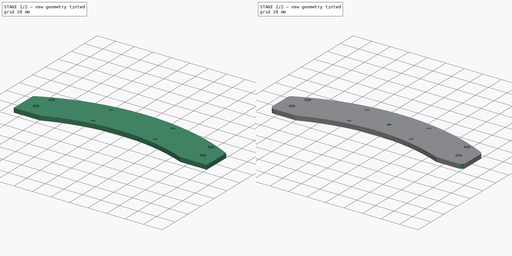
[diagram: build sequence overview — one tinted view per stage of 2, left to right]
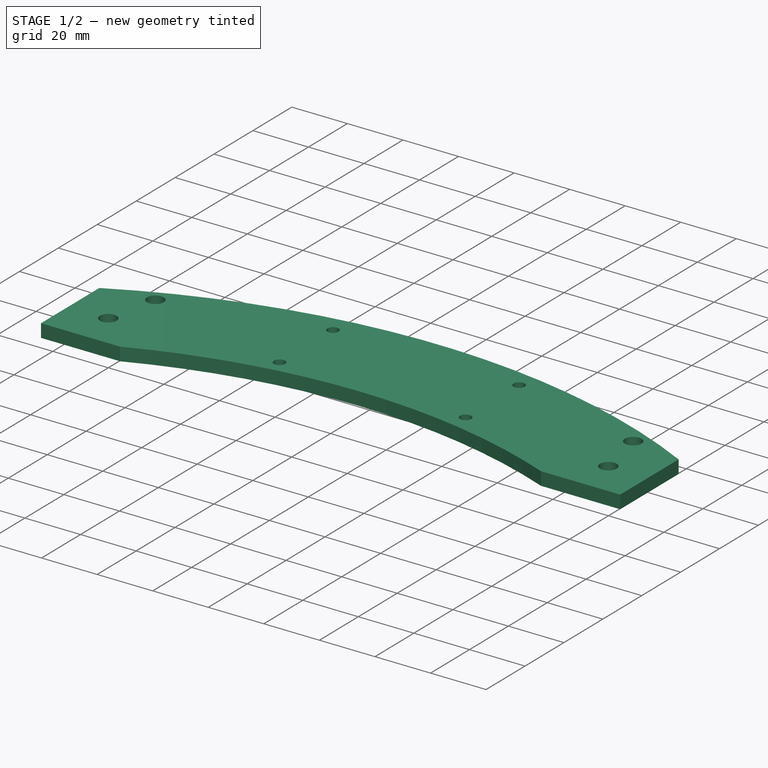
[diagram: stage 1 of 2 — iso view after this stage's code; geometry added in this stage tinted green]
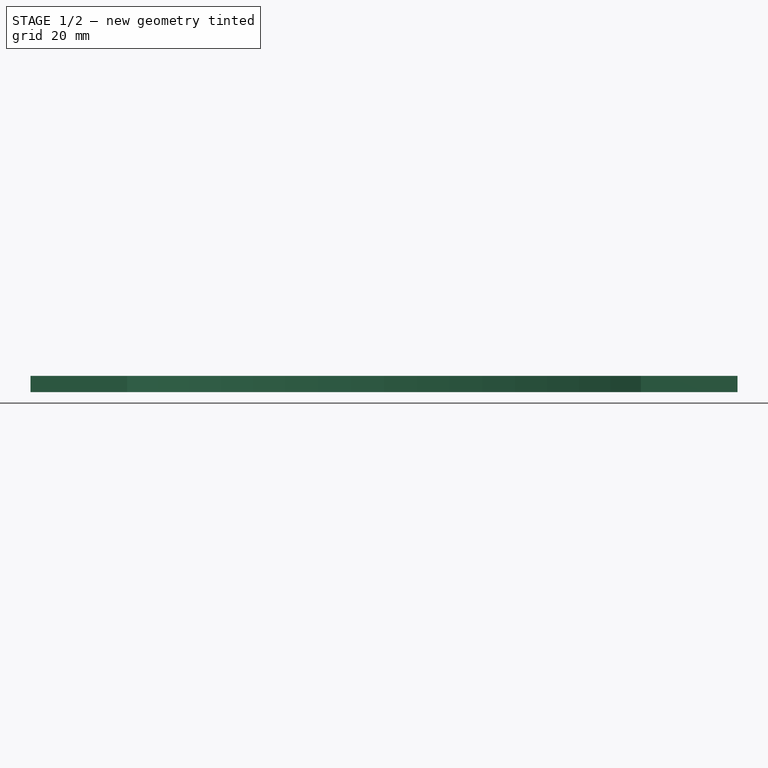
[diagram: stage 1 of 2 — front view after this stage's code; geometry added in this stage tinted green]
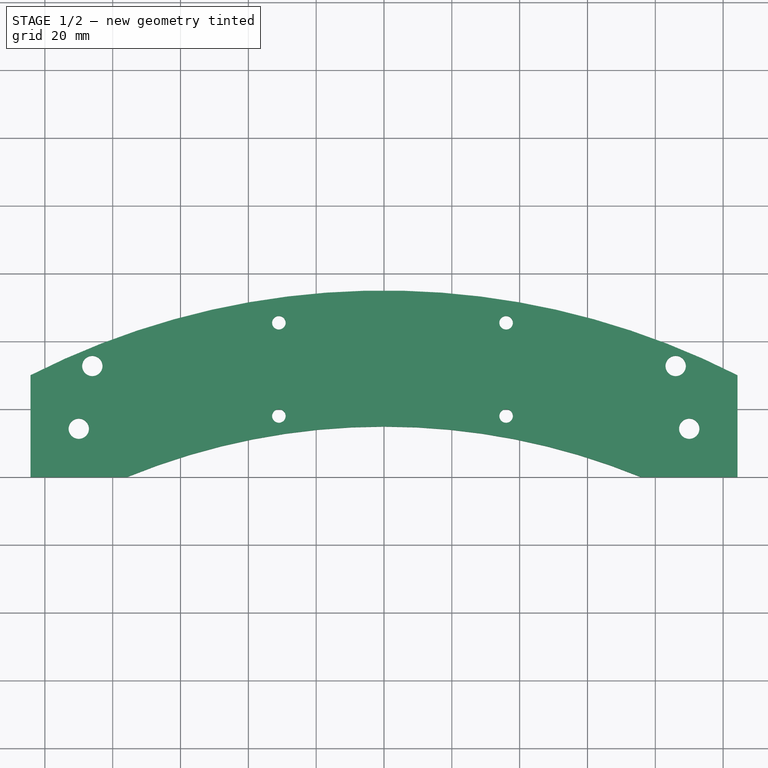
[diagram: stage 1 of 2 — top view after this stage's code; geometry added in this stage tinted green]
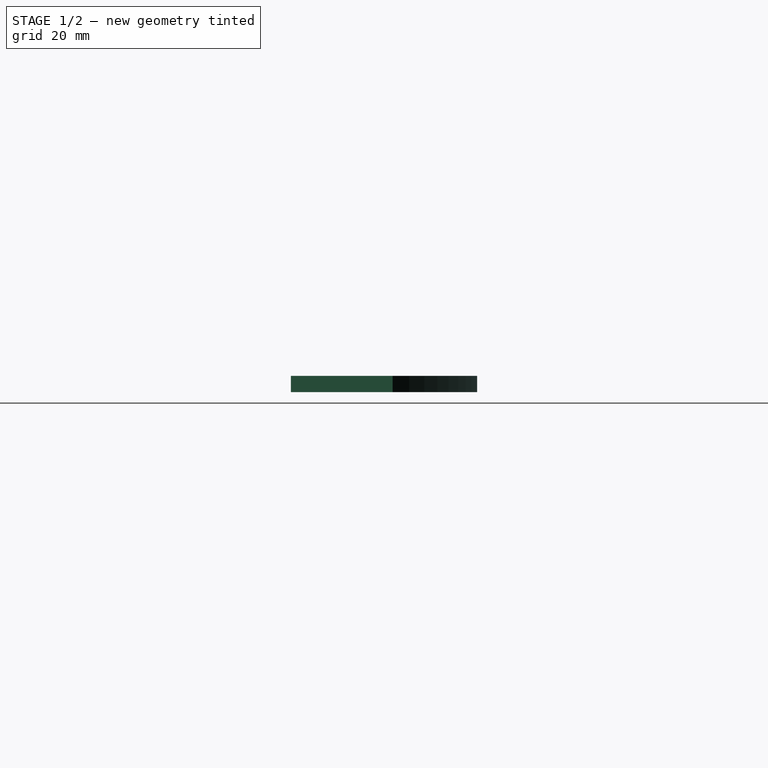
[diagram: stage 1 of 2 — right view after this stage's code; geometry added in this stage tinted green]
FCSTD DOCUMENT  (FreeCAD 0.16R5861 (Git))
Label: y_end_plate_v0.2_revA
License: All rights reserved
LicenseURL: http://en.wikipedia.org/wiki/All_rights_reserved
objects: Drawing::FeatureView×54, Sketcher::SketchObject×4, Drawing::FeatureViewPart×3, PartDesign::Pocket×2, PartDesign::Pad×1, PartDesign::Fillet×1, Drawing::FeaturePage×1
note: 11 computed .brp shape members not serialized (recipe doc carries the construction recipe); baked Part::Feature solids carry a one-line shape summary decoded from their .brp

FEATURE [Sketcher::SketchObject] Sketch
  sketch-geometry (8):
    g0: ArcOfCircle CenterX=0 CenterY=-185.1 CenterZ=0 NormalX=0 NormalY=0 NormalZ=1 Radius=200 StartAngle=1.18235 EndAngle=1.95924
    g1: ArcOfCircle CenterX=0 CenterY=-175 CenterZ=0 NormalX=0 NormalY=0 NormalZ=1 Radius=230 StartAngle=1.10038 EndAngle=2.04122
    g2: LineSegment [constr] StartX=0 StartY=55 StartZ=0 EndX=0 EndY=0 EndZ=0
    g3: LineSegment StartX=-104.25 StartY=0 StartZ=0 EndX=-104.25 EndY=30.0169 EndZ=0
    g4: LineSegment StartX=-104.25 StartY=0 StartZ=0 EndX=-75.7495 EndY=-1.6e-11 EndZ=0
    g5: LineSegment StartX=104.25 StartY=30.0169 StartZ=0 EndX=104.25 EndY=0 EndZ=0
    g6: LineSegment StartX=75.7495 StartY=-1.6e-11 StartZ=0 EndX=104.25 EndY=0 EndZ=0
    g7: LineSegment [constr] StartX=0 StartY=14.9 StartZ=0 EndX=0 EndY=0 EndZ=0
  constraints (26):
    c: PointOnObject(g0,g-1)
    c: PointOnObject(g0,g-1)
    c: PointOnObject(g2,g1)
    c: Coincident(g2,g-1)
    c: Vertical(g2)
    c: PointOnObject(g1,g-2)
    c: PointOnObject(g0,g-2)
    c: DistanceY(g2) = -55
    c: Radius(g0) = 200
    c: Radius(g1) = 230
    c: PointOnObject(g3,g-1)
    c: Coincident(g3,g1)
    c: Vertical(g3)
    c: Coincident(g4,g3)
    c: Coincident(g4,g0)
    c: Coincident(g5,g1)
    c: PointOnObject(g5,g-1)
    c: Vertical(g5)
    c: Coincident(g6,g0)
    c: Coincident(g6,g5)
    c: DistanceX(g3,g5) = 208.5
    c: PointOnObject(g7,g0)
    c: Coincident(g7,g-1)
    c: DistanceY(g7) = -14.9
    c: Vertical(g7)
    c: Equal(g6,g4)
FEATURE [PartDesign::Pad] Pad
  Length = 4.763
  Length2 = 100
  Sketch = -> Sketch
  Type = 0
FEATURE [Sketcher::SketchObject] Sketch001
  ExternalGeometry = -> [Pad]
  Placement = pos=(0,0,4.763) rot=(0,0,1;0rad)
  Support = -> Pad [Face8]
  sketch-geometry (14):
    g0: LineSegment [constr] StartX=-31 StartY=45.5 StartZ=0 EndX=36 EndY=45.5 EndZ=0
    g1: LineSegment [constr] StartX=36 StartY=45.5 StartZ=0 EndX=36 EndY=18 EndZ=0
    g2: LineSegment [constr] StartX=36 StartY=18 StartZ=0 EndX=-31 EndY=18 EndZ=0
    g3: LineSegment [constr] StartX=-31 StartY=18 StartZ=0 EndX=-31 EndY=45.5 EndZ=0
    g4: Circle CenterX=-31 CenterY=45.5 CenterZ=0 NormalX=0 NormalY=0 NormalZ=1 Radius=2
    g5: Circle CenterX=36 CenterY=45.5 CenterZ=0 NormalX=0 NormalY=0 NormalZ=1 Radius=2
    g6: Circle CenterX=36 CenterY=18 CenterZ=0 NormalX=0 NormalY=0 NormalZ=1 Radius=2
    g7: Circle CenterX=-31 CenterY=18 CenterZ=0 NormalX=0 NormalY=0 NormalZ=1 Radius=2
    g8: LineSegment [constr] StartX=-90 StartY=14.25 StartZ=0 EndX=90 EndY=14.25 EndZ=0
    g9: LineSegment [constr] StartX=-86 StartY=32.75 StartZ=0 EndX=86 EndY=32.75 EndZ=0
    g10: Circle CenterX=-90 CenterY=14.25 CenterZ=0 NormalX=0 NormalY=0 NormalZ=1 Radius=3
    g11: Circle CenterX=-86 CenterY=32.75 CenterZ=0 NormalX=0 NormalY=0 NormalZ=1 Radius=3
    g12: Circle CenterX=86 CenterY=32.75 CenterZ=0 NormalX=0 NormalY=0 NormalZ=1 Radius=3
    g13: Circle CenterX=90 CenterY=14.25 CenterZ=0 NormalX=0 NormalY=0 NormalZ=1 Radius=3
  constraints (36):
    c: Coincident(g0,g1)
    c: Coincident(g1,g2)
    c: Coincident(g2,g3)
    c: Coincident(g3,g0)
    c: Horizontal(g0)
    c: Horizontal(g2)
    c: Vertical(g1)
    c: Vertical(g3)
    c: DistanceX(g-3,g2) = 73.25
    c: DistanceX(g1,g-3) = -140.25
    c: DistanceY(g2,g-3) = -18
    c: DistanceY(g0,g-3) = -45.5
    c: Coincident(g4,g0)
    c: Coincident(g5,g0)
    c: Coincident(g6,g1)
    c: Coincident(g7,g2)
    c: Equal(g7,g4)
    c: Equal(g4,g5)
    c: Equal(g5,g6)
    c: Radius(g5) = 2
    c: Horizontal(g8)
    c: Horizontal(g9)
    c: DistanceY(g8,g-3) = -14.25
    c: DistanceX(g8,g-3) = -14.25
    c: DistanceY(g9,g-3) = -32.75
    c: DistanceX(g9,g-3) = -18.25
    c: DistanceX(g9,g-3) = -190.25
    c: DistanceX(g8,g-3) = -194.25
    c: Coincident(g10,g8)
    c: Coincident(g11,g9)
    c: Coincident(g12,g9)
    c: Coincident(g13,g8)
    c: Radius(g13) = 3
    c: Equal(g13,g12)
    c: Equal(g13,g11)
    c: Equal(g13,g10)
FEATURE [PartDesign::Pocket] Pocket
  Length = 5
  Sketch = -> Sketch001
  Type = 1
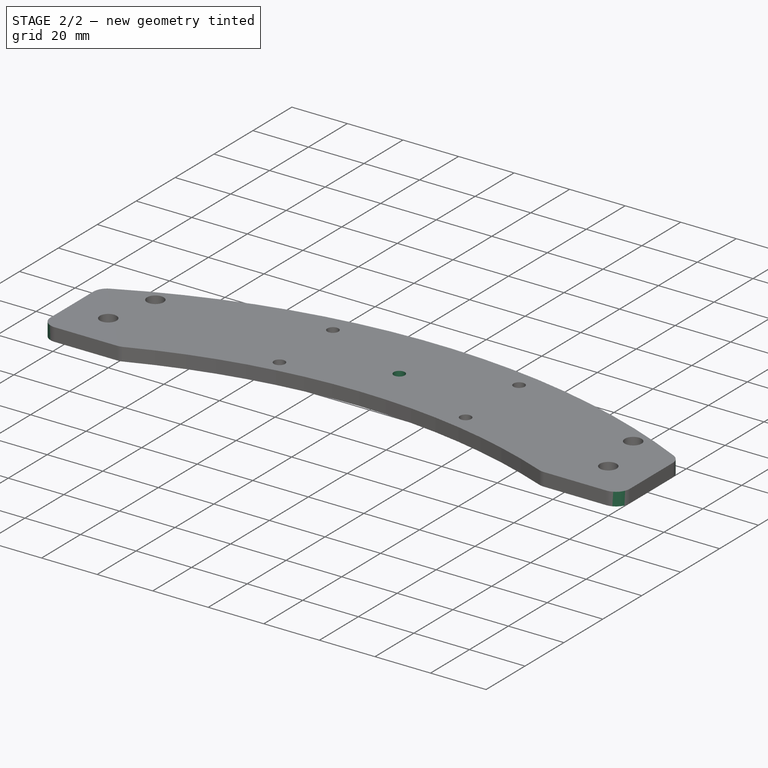
[diagram: stage 2 of 2 — iso view after this stage's code; geometry added in this stage tinted green]
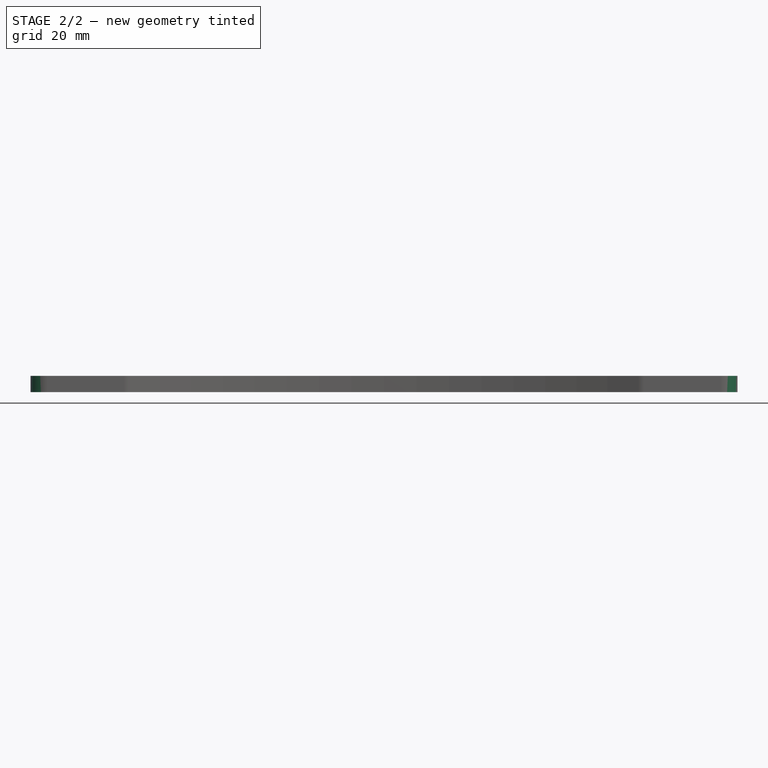
[diagram: stage 2 of 2 — front view after this stage's code; geometry added in this stage tinted green]
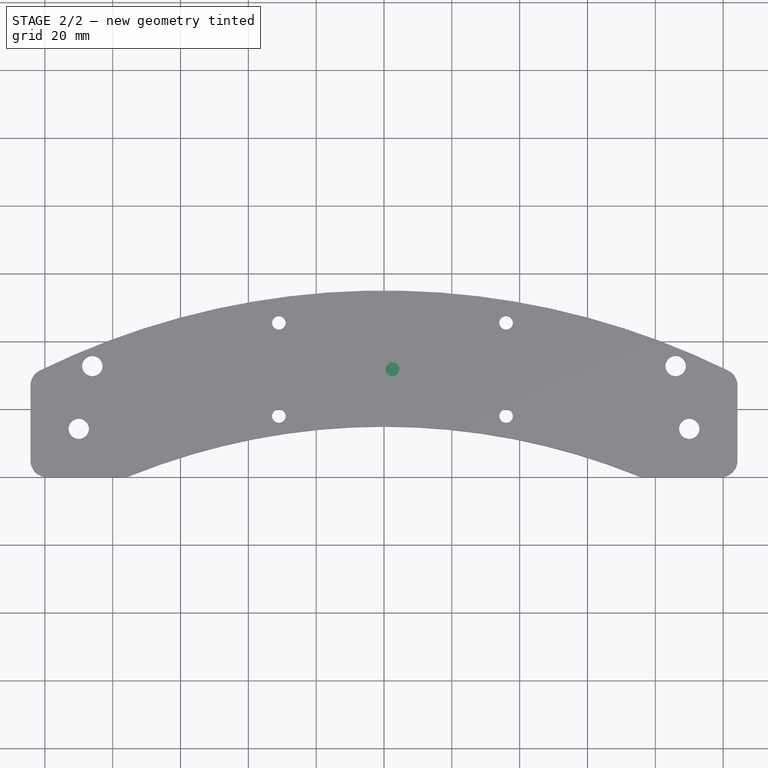
[diagram: stage 2 of 2 — top view after this stage's code; geometry added in this stage tinted green]
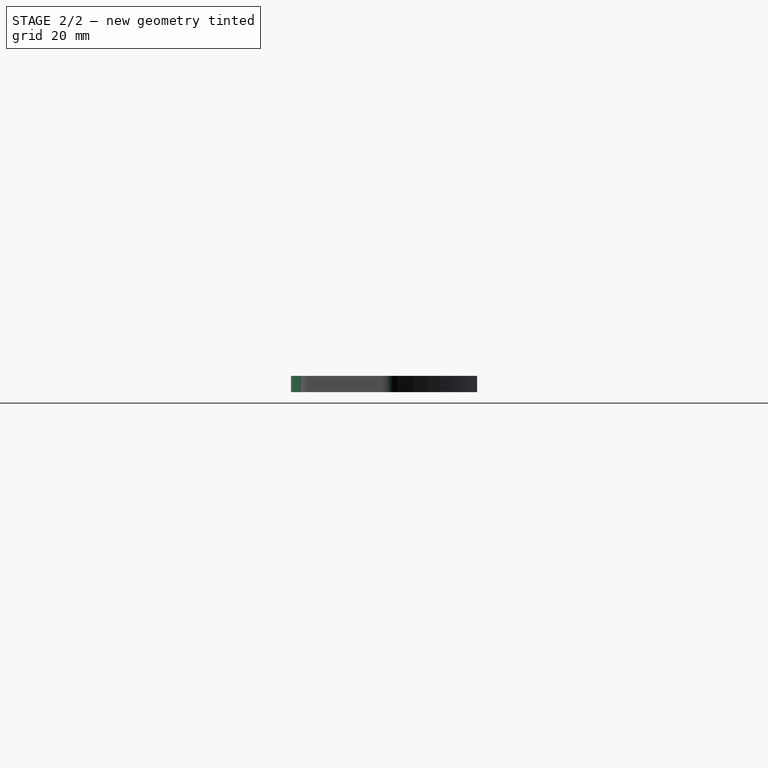
[diagram: stage 2 of 2 — right view after this stage's code; geometry added in this stage tinted green]
FEATURE [PartDesign::Fillet] Fillet
  Base = -> Pocket [Edge34,Edge8,Edge33,Edge2,Edge1,Edge5]
  Radius = 5
FEATURE [Drawing::FeatureView] centerLines001
  Rotation = 0
  ViewResult = <g transform="scale(0.500000,0.500000)" stroke="rgb(0,0,255)"  stroke-width="0.600000" > <path d="M 110.000000,163.250000 L 110.000000,159.250000 "/>\n<path d="M 110.000000,163.250000 L 114.000000,163.250000 "/>\n<path d="M 110.000000,163.250000 L 110.000000,167.250000 "/>\n<path d="M 110.000000,163.250000 L 106.000000,163.250000 "/> </g> 
  Visible = true
  X = 0
  Y = 0
FEATURE [Drawing::FeatureView] centerLines002
  Rotation = 0
  ViewResult = <g transform="scale(0.500000,0.500000)" stroke="rgb(0,0,255)"  stroke-width="0.600000" > <path d="M 114.000000,144.750000 L 114.000000,140.750000 "/>\n<path d="M 114.000000,144.750000 L 118.000000,144.750000 "/>\n<path d="M 114.000000,144.750000 L 114.000000,148.685197 "/>\n<path d="M 114.000000,144.750000 L 110.000000,144.750000 "/> </g> 
  Visible = true
  X = 0
  Y = 0
FEATURE [Drawing::FeatureView] centerLines003
  Rotation = 0
  ViewResult = <g transform="scale(0.500000,0.500000)" stroke="rgb(0,0,255)"  stroke-width="0.600000" > <path d="M 169.000000,132.000000 L 169.000000,134.952283 "/>\n<path d="M 169.000000,132.000000 L 172.189606,132.000000 "/>\n<path d="M 169.000000,132.000000 L 169.000000,128.614016 "/>\n<path d="M 169.000000,132.000000 L 165.059055,132.000000 "/> </g> 
  Visible = true
  X = 0
  Y = 0
FEATURE [Drawing::FeatureView] centerLines004
  Rotation = 0
  ViewResult = <g transform="scale(0.500000,0.500000)" stroke="rgb(0,0,255)"  stroke-width="0.600000" > <path d="M 169.000000,159.500000 L 169.000000,155.551653 "/>\n<path d="M 169.000000,159.500000 L 171.925511,159.500000 "/>\n<path d="M 169.000000,159.500000 L 169.000000,162.418110 "/>\n<path d="M 169.000000,159.500000 L 165.323149,159.500000 "/> </g> 
  Visible = true
  X = 0
  Y = 0
FEATURE [Drawing::FeatureView] centerLines005
  Rotation = 0
  ViewResult = <g transform="scale(0.500000,0.500000)" stroke="rgb(0,0,255)"  stroke-width="0.600000" > <path d="M 236.000000,159.500000 L 236.000000,156.079842 "/>\n<path d="M 236.000000,159.500000 L 238.477322,159.500000 "/>\n<path d="M 236.000000,159.500000 L 236.000000,162.418110 "/>\n<path d="M 236.000000,159.500000 L 232.667244,159.500000 "/> </g> 
  Visible = true
  X = 0
  Y = 0
FEATURE [Drawing::FeatureView] centerLines006
  Rotation = 0
  ViewResult = <g transform="scale(0.500000,0.500000)" stroke="rgb(0,0,255)"  stroke-width="0.600000" > <path d="M 236.000000,132.000000 L 236.000000,135.216378 "/>\n<path d="M 236.000000,132.000000 L 239.269606,132.000000 "/>\n<path d="M 236.000000,132.000000 L 236.000000,128.878110 "/>\n<path d="M 236.000000,132.000000 L 232.000000,132.000000 "/> </g> 
  Visible = true
  X = 0
  Y = 0
FEATURE [Drawing::FeatureView] centerLines007
  Rotation = 0
  ViewResult = <g transform="scale(0.500000,0.500000)" stroke="rgb(0,0,255)"  stroke-width="0.600000" > <path d="M 286.000000,144.750000 L 286.000000,148.750000 "/>\n<path d="M 286.000000,144.750000 L 290.000000,144.750000 "/>\n<path d="M 286.000000,144.750000 L 286.000000,140.762362 "/>\n<path d="M 286.000000,144.750000 L 282.000000,144.750000 "/> </g> 
  Visible = true
  X = 0
  Y = 0
FEATURE [Drawing::FeatureView] centerLines008
  Rotation = 0
  ViewResult = <g transform="scale(0.500000,0.500000)" stroke="rgb(0,0,255)"  stroke-width="0.600000" > <path d="M 290.000000,163.250000 L 290.000000,167.250000 "/>\n<path d="M 290.000000,163.250000 L 294.000000,163.250000 "/>\n<path d="M 290.000000,163.250000 L 290.000000,159.250000 "/>\n<path d="M 290.000000,163.250000 L 286.000000,163.250000 "/> </g> 
  Visible = true
  X = 0
  Y = 0
FEATURE [Drawing::FeatureView] dim001
  Rotation = 0
  ViewResult = <g>  <circle cx ="100.000000" cy ="181.300008" r="0.500000" stroke="none" fill="rgb(0,0,255)" /> \n<line x1="107.897707" y1="57.698195" x2="100.000000" y2="181.300008" style="stroke:rgb(0,0,255);stroke-width:0.20" />\n<polygon points="106.376633,81.503522 105.436860,84.449592 106.185334,84.497417 106.933808,84.545241" style="fill:rgb(0,0,255);stroke:rgb(0,0,255);stroke-width:0" />\n<line x1="107.897707" y1="57.698195" x2="120.812104" y2="57.698195" style="stroke:rgb(0,0,255);stroke-width:0.20" />\n<text x="114.354906" y="55.698195" font-family="Verdana" font-size="3" fill="rgb(0,0,255)" text-anchor="middle"  >R200.0</text> </g>
  Visible = true
  X = 0
  Y = 0
FEATURE [Drawing::FeatureView] dim002
  Rotation = 0
  ViewResult = <g>  <circle cx ="100.000000" cy ="176.249878" r="0.500000" stroke="none" fill="rgb(0,0,255)" /> \n<line x1="101.232212" y1="49.158029" x2="100.000000" y2="176.249878" style="stroke:rgb(0,0,255);stroke-width:0.20" />\n<polygon points="101.114923,61.255283 100.335874,64.247871 101.085838,64.255142 101.835803,64.262413" style="fill:rgb(0,0,255);stroke:rgb(0,0,255);stroke-width:0" />\n<line x1="101.232212" y1="49.158029" x2="113.105125" y2="49.158029" style="stroke:rgb(0,0,255);stroke-width:0.20" />\n<text x="107.168669" y="47.158029" font-family="Verdana" font-size="3" fill="rgb(0,0,255)" text-anchor="middle"  >R230.0</text> </g>
  Visible = true
  X = 0
  Y = 0
FEATURE [Drawing::FeatureView] dim010
  Rotation = 0
  ViewResult = <g>  <circle cx ="118.000000" cy ="66.000000" r="0.500000" stroke="none" fill="rgb(0,0,255)" /> \n<line x1="129.977161" y1="53.532260" x2="117.307223" y2="66.721152" style="stroke:rgb(0,0,255);stroke-width:0.20" />\n<polygon points="118.692777,65.278848 121.311970,63.634973 120.771106,63.115391 120.230242,62.595808" style="fill:rgb(0,0,255);stroke:rgb(0,0,255);stroke-width:0" />\n<polygon points="117.307223,66.721152 114.688030,68.365027 115.228894,68.884609 115.769758,69.404192" style="fill:rgb(0,0,255);stroke:rgb(0,0,255);stroke-width:0" />\n<line x1="129.977161" y1="53.532260" x2="162.888044" y2="53.532260" style="stroke:rgb(0,0,255);stroke-width:0.20" />\n<text x="146.432602" y="51.532260" font-family="Verdana" font-size="3" fill="rgb(0,0,255)" text-anchor="middle"  >4X Ø4.00 THRU</text> </g>
  Visible = true
  X = 0
  Y = 0
FEATURE [Drawing::FeatureView] dim011
  Rotation = 0
  ViewResult = <g>  <circle cx ="143.000000" cy ="72.375000" r="0.500000" stroke="none" fill="rgb(0,0,255)" /> \n<line x1="145.807712" y1="63.530503" x2="142.546141" y2="73.804689" style="stroke:rgb(0,0,255);stroke-width:0.20" />\n<polygon points="143.453859,70.945311 145.076422,68.312861 144.361578,68.085932 143.646733,67.859002" style="fill:rgb(0,0,255);stroke:rgb(0,0,255);stroke-width:0" />\n<polygon points="142.546141,73.804689 140.923578,76.437139 141.638422,76.664068 142.353267,76.890998" style="fill:rgb(0,0,255);stroke:rgb(0,0,255);stroke-width:0" />\n<line x1="145.807712" y1="63.530503" x2="167.262276" y2="63.530503" style="stroke:rgb(0,0,255);stroke-width:0.20" />\n<text x="156.534994" y="61.530503" font-family="Verdana" font-size="3" fill="rgb(0,0,255)" text-anchor="middle"  >4X Ø6.00 THRU</text> </g>
  Visible = true
  X = 0
  Y = 0
FEATURE [Drawing::FeatureView] dim012
  Rotation = 0
  ViewResult = <g>  <circle cx ="149.625000" cy ="75.286472" r="0.500000" stroke="none" fill="rgb(0,0,255)" /> \n<line x1="157.264033" y1="71.029186" x2="149.625000" y2="75.286472" style="stroke:rgb(0,0,255);stroke-width:0.20" />\n<polygon points="151.808768,74.069443 154.794397,73.264139 154.429289,72.609008 154.064180,71.953878" style="fill:rgb(0,0,255);stroke:rgb(0,0,255);stroke-width:0" />\n<line x1="157.264033" y1="71.029186" x2="171.844804" y2="71.029186" style="stroke:rgb(0,0,255);stroke-width:0.20" />\n<text x="164.554418" y="69.029186" font-family="Verdana" font-size="3" fill="rgb(0,0,255)" text-anchor="middle"  >R5.0 TYP</text> </g>
  Visible = true
  X = 0
  Y = 0
FEATURE [Drawing::FeatureView] grabPoint001
  Rotation = 0
  ViewResult = <g> <line x1="101.023914945" y1="81.2357254195" x2="101.023914945" y2="81.2357254195" style="stroke:rgb(0,0,0);stroke-width:0.01" /> </g> 
  Visible = true
  X = 0
  Y = 0
FEATURE [Drawing::FeatureView] grabPoint002
  Rotation = 0
  ViewResult = <g> <line x1="100.399024749" y1="60.8226456987" x2="100.399024749" y2="60.8226456987" style="stroke:rgb(0,0,0);stroke-width:0.01" /> </g> 
  Visible = true
  X = 0
  Y = 0
FEATURE [Drawing::FeatureView] dim013
  Rotation = 0
  ViewResult = <g> \n  <line x1="48.375000" y1="88.750000" x2="39.617863" y2="88.750000" style="stroke:rgb(0,0,255);stroke-width:0.20" />\n<line x1="51.500000" y1="81.625000" x2="39.617863" y2="81.625000" style="stroke:rgb(0,0,255);stroke-width:0.20" />\n<line x1="40.617863" y1="88.750000" x2="40.617863" y2="81.625000" style="stroke:rgb(0,0,255);stroke-width:0.20" /> \n  <polygon points="40.617863,81.625000 41.367863,78.625000 40.617863,78.625000 39.867863,78.625000" style="fill:rgb(0,0,255);stroke:rgb(0,0,255);stroke-width:0" /><polygon points="40.617863,88.750000 39.867863,91.750000 40.617863,91.750000 41.367863,91.750000" style="fill:rgb(0,0,255);stroke:rgb(0,0,255);stroke-width:0" /> \n  <text x="41.582982" y="99.690205" font-family="Verdana" font-size="3" fill="rgb(0,0,255)" text-anchor="middle" transform="rotate(-90.000000 41.582982,99.690205)" >2X 14.25</text> </g>
  Visible = true
  X = 0
  Y = 0
FEATURE [Drawing::FeatureView] dim014
  Rotation = 0
  ViewResult = <g> \n  <line x1="48.375000" y1="88.750000" x2="32.535774" y2="88.750000" style="stroke:rgb(0,0,255);stroke-width:0.20" />\n<line x1="99.023915" y1="81.235725" x2="32.535774" y2="81.235725" style="stroke:rgb(0,0,255);stroke-width:0.20" />\n<line x1="33.535774" y1="88.750000" x2="33.535774" y2="81.235725" style="stroke:rgb(0,0,255);stroke-width:0.20" /> \n  <polygon points="33.535774,81.235725 32.785774,84.235725 33.535774,84.235725 34.285774,84.235725" style="fill:rgb(0,0,255);stroke:rgb(0,0,255);stroke-width:0" /><polygon points="33.535774,88.750000 34.285774,85.750000 33.535774,85.750000 32.785774,85.750000" style="fill:rgb(0,0,255);stroke:rgb(0,0,255);stroke-width:0" /> \n  <text x="34.493939" y="92.983661" font-family="Verdana" font-size="3" fill="rgb(0,0,255)" text-anchor="middle" transform="rotate(-90.000000 34.493939,92.983661)" >14.9</text> </g>
  Visible = true
  X = 0
  Y = 0
FEATURE [Drawing::FeatureView] dim015
  Rotation = 0
  ViewResult = <g> \n  <line x1="48.375000" y1="88.750000" x2="26.703465" y2="88.750000" style="stroke:rgb(0,0,255);stroke-width:0.20" />\n<line x1="81.500000" y1="79.750000" x2="26.703465" y2="79.750000" style="stroke:rgb(0,0,255);stroke-width:0.20" />\n<line x1="27.703465" y1="88.750000" x2="27.703465" y2="79.750000" style="stroke:rgb(0,0,255);stroke-width:0.20" /> \n  <polygon points="27.703465,79.750000 26.953465,82.750000 27.703465,82.750000 28.453465,82.750000" style="fill:rgb(0,0,255);stroke:rgb(0,0,255);stroke-width:0" /><polygon points="27.703465,88.750000 28.453465,85.750000 27.703465,85.750000 26.953465,85.750000" style="fill:rgb(0,0,255);stroke:rgb(0,0,255);stroke-width:0" /> \n  <text x="25.812146" y="81.059195" font-family="Verdana" font-size="3" fill="rgb(0,0,255)" text-anchor="middle" transform="rotate(-90.000000 25.812146,81.059195)" >2X 18.00</text> </g>
  Visible = true
  X = 0
  Y = 0
FEATURE [Drawing::FeatureView] dim016
  Rotation = 0
  ViewResult = <g> \n  <line x1="48.375000" y1="88.750000" x2="21.704344" y2="88.750000" style="stroke:rgb(0,0,255);stroke-width:0.20" />\n<line x1="53.500000" y1="72.375000" x2="21.704344" y2="72.375000" style="stroke:rgb(0,0,255);stroke-width:0.20" />\n<line x1="22.704344" y1="88.750000" x2="22.704344" y2="72.375000" style="stroke:rgb(0,0,255);stroke-width:0.20" /> \n  <polygon points="22.704344,72.375000 21.954344,75.375000 22.704344,75.375000 23.454344,75.375000" style="fill:rgb(0,0,255);stroke:rgb(0,0,255);stroke-width:0" /><polygon points="22.704344,88.750000 23.454344,85.750000 22.704344,85.750000 21.954344,85.750000" style="fill:rgb(0,0,255);stroke:rgb(0,0,255);stroke-width:0" /> \n  <text x="20.704344" y="80.562500" font-family="Verdana" font-size="3" fill="rgb(0,0,255)" text-anchor="middle" transform="rotate(-90.000000 20.704344,80.562500)" >2X 32.75</text> </g>
  Visible = true
  X = 0
  Y = 0
FEATURE [Drawing::FeatureView] dim017
  Rotation = 0
  ViewResult = <g> \n  <line x1="48.375000" y1="88.750000" x2="16.080332" y2="88.750000" style="stroke:rgb(0,0,255);stroke-width:0.20" />\n<line x1="81.500000" y1="66.000000" x2="16.080332" y2="66.000000" style="stroke:rgb(0,0,255);stroke-width:0.20" />\n<line x1="17.080332" y1="88.750000" x2="17.080332" y2="66.000000" style="stroke:rgb(0,0,255);stroke-width:0.20" /> \n  <polygon points="17.080332,66.000000 16.330332,69.000000 17.080332,69.000000 17.830332,69.000000" style="fill:rgb(0,0,255);stroke:rgb(0,0,255);stroke-width:0" /><polygon points="17.080332,88.750000 17.830332,85.750000 17.080332,85.750000 16.330332,85.750000" style="fill:rgb(0,0,255);stroke:rgb(0,0,255);stroke-width:0" /> \n  <text x="15.080332" y="77.375000" font-family="Verdana" font-size="3" fill="rgb(0,0,255)" text-anchor="middle" transform="rotate(-90.000000 15.080332,77.375000)" >2X 45.50</text> </g>
  Visible = true
  X = 0
  Y = 0
FEATURE [Drawing::FeatureView] dim018
  Rotation = 0
  ViewResult = <g> \n  <line x1="48.375000" y1="88.750000" x2="10.456320" y2="88.750000" style="stroke:rgb(0,0,255);stroke-width:0.20" />\n<line x1="98.399025" y1="60.822646" x2="10.456320" y2="60.822646" style="stroke:rgb(0,0,255);stroke-width:0.20" />\n<line x1="11.456320" y1="88.750000" x2="11.456320" y2="60.822646" style="stroke:rgb(0,0,255);stroke-width:0.20" /> \n  <polygon points="11.456320,60.822646 10.706320,63.822646 11.456320,63.822646 12.206320,63.822646" style="fill:rgb(0,0,255);stroke:rgb(0,0,255);stroke-width:0" /><polygon points="11.456320,88.750000 12.206320,85.750000 11.456320,85.750000 10.706320,85.750000" style="fill:rgb(0,0,255);stroke:rgb(0,0,255);stroke-width:0" /> \n  <text x="10.641850" y="77.436438" font-family="Verdana" font-size="3" fill="rgb(0,0,255)" text-anchor="middle" transform="rotate(-90.000000 10.641850,77.436438)" >55.0</text> </g>
  Visible = true
  X = 0
  Y = 0
FEATURE [Drawing::FeatureView] dimText001
  Rotation = 0
  ViewResult = <g> <text x="228.209899" y="48.491479" font-family="inherit" font-size="3" fill="rgb(0,0,255)" text-anchor="inherit" transform="rotate(0.000000 228.209899,48.491479)" >[0.188]</text> </g>
  Visible = true
  X = 0
  Y = 0
FEATURE [Drawing::FeatureView] dimText002
  Rotation = 0
  ViewResult = <g> <text x="172.307396" y="98.720137" font-family="inherit" font-size="5" fill="rgb(0,0,0)" text-anchor="inherit" transform="rotate(0.000000 172.307396,98.720137)" >Notes:</text> </g>
  Visible = true
  X = 0
  Y = 0
FEATURE [Drawing::FeatureView] dimText003
  Rotation = 0
  ViewResult = <g> <text x="170.000000" y="105.000000" font-family="inherit" font-size="3" fill="rgb(0,0,0)" text-anchor="inherit"  >1. Parts must be RoHS compliant.</text> </g>
  Visible = true
  X = 0
  Y = 0
FEATURE [Drawing::FeatureView] dimText004
  Rotation = 0
  ViewResult = <g> <text x="170.000000" y="110.000000" font-family="inherit" font-size="3" fill="rgb(0,0,0)" text-anchor="inherit" transform="rotate(0.000000 170.000000,110.000000)" >2. Material: 5052 H-32 Aluminum.</text> </g>
  Visible = true
  X = 0
  Y = 0
FEATURE [Drawing::FeatureView] dimText005
  Rotation = 0
  ViewResult = <g> <text x="170.000000" y="115.000000" font-family="inherit" font-size="3" fill="rgb(0,0,0)" text-anchor="inherit" transform="rotate(0.000000 170.000000,115.000000)" >3. Break all sharp edges prior to powder coat.</text> </g>
  Visible = true
  X = 0
  Y = 0
FEATURE [Drawing::FeatureView] dimText006
  Rotation = 0
  ViewResult = <g> <text x="170.000000" y="120.000000" font-family="inherit" font-size="3" fill="rgb(0,0,0)" text-anchor="inherit" transform="rotate(0.000000 170.000000,120.000000)" >4. Part is to be powder coated with Cardinal </text> </g>
  Visible = true
  X = 0
  Y = 0
FEATURE [Drawing::FeatureView] dimText007
  Rotation = 0
  ViewResult = <g> <text x="173.378031" y="124.916693" font-family="inherit" font-size="3" fill="rgb(0,0,0)" text-anchor="inherit" transform="rotate(0.000000 173.378031,124.916693)" >color C241-BK109. Thickness of coating not to exceed 0.08mm.</text> </g>
  Visible = true
  X = 0
  Y = 0
FEATURE [Drawing::FeatureViewPart] View
  Direction = (1,1,1)
  HiddenWidth = 0.15
  LineWidth = 0.35
  Rotation = 0
  Scale = 0.4
  ShowHiddenLines = false
  ShowSmoothLines = false
  Source = -> Fillet
  Tolerance = 0.05
  ViewResult = <blob: 3342 chars omitted>
  Visible = true
  X = 50
  Y = 175
FEATURE [Drawing::FeatureView] dim003
  Rotation = 0
  ViewResult = <g> \n  <line x1="47.875000" y1="88.250000" x2="47.875000" y2="110.858969" style="stroke:rgb(0,0,255);stroke-width:0.20" />\n<line x1="55.000000" y1="85.125000" x2="55.000000" y2="110.858969" style="stroke:rgb(0,0,255);stroke-width:0.20" />\n<line x1="47.875000" y1="109.858969" x2="55.000000" y2="109.858969" style="stroke:rgb(0,0,255);stroke-width:0.20" /> \n  <polygon points="55.000000,109.858969 58.000000,110.608969 58.000000,109.858969 58.000000,109.108969" style="fill:rgb(0,0,255);stroke:rgb(0,0,255);stroke-width:0" /><polygon points="47.875000,109.858969 44.875000,109.108969 44.875000,109.858969 44.875000,110.608969" style="fill:rgb(0,0,255);stroke:rgb(0,0,255);stroke-width:0" /> \n  <text x="39.482126" y="110.919685" font-family="Verdana" font-size="3" fill="rgb(0,0,255)" text-anchor="middle" transform="rotate(0.000000 39.482126,110.919685)" >14.25</text> </g>
  Visible = true
  X = 0
  Y = 0
FEATURE [Drawing::FeatureView] dim004
  Rotation = 0
  ViewResult = <g> \n  <line x1="47.875000" y1="88.250000" x2="47.875000" y2="116.124937" style="stroke:rgb(0,0,255);stroke-width:0.20" />\n<line x1="57.000000" y1="75.875000" x2="57.000000" y2="116.124937" style="stroke:rgb(0,0,255);stroke-width:0.20" />\n<line x1="47.875000" y1="115.124937" x2="57.000000" y2="115.124937" style="stroke:rgb(0,0,255);stroke-width:0.20" /> \n  <polygon points="57.000000,115.124937 54.000000,114.374937 54.000000,115.124937 54.000000,115.874937" style="fill:rgb(0,0,255);stroke:rgb(0,0,255);stroke-width:0" /><polygon points="47.875000,115.124937 50.875000,115.874937 50.875000,115.124937 50.875000,114.374937" style="fill:rgb(0,0,255);stroke:rgb(0,0,255);stroke-width:0" /> \n  <text x="42.651260" y="116.069527" font-family="Verdana" font-size="3" fill="rgb(0,0,255)" text-anchor="middle" transform="rotate(0.000000 42.651260,116.069527)" >18.25</text> </g>
  Visible = true
  X = 0
  Y = 0
FEATURE [Drawing::FeatureView] dim005
  Rotation = 0
  ViewResult = <g> \n  <line x1="47.875000" y1="88.250000" x2="47.875000" y2="120.482978" style="stroke:rgb(0,0,255);stroke-width:0.20" />\n<line x1="84.500000" y1="82.750000" x2="84.500000" y2="120.482978" style="stroke:rgb(0,0,255);stroke-width:0.20" />\n<line x1="47.875000" y1="119.482978" x2="84.500000" y2="119.482978" style="stroke:rgb(0,0,255);stroke-width:0.20" /> \n  <polygon points="84.500000,119.482978 81.500000,118.732978 81.500000,119.482978 81.500000,120.232978" style="fill:rgb(0,0,255);stroke:rgb(0,0,255);stroke-width:0" /><polygon points="47.875000,119.482978 50.875000,120.232978 50.875000,119.482978 50.875000,118.732978" style="fill:rgb(0,0,255);stroke:rgb(0,0,255);stroke-width:0" /> \n  <text x="40.406457" y="120.427086" font-family="Verdana" font-size="3" fill="rgb(0,0,255)" text-anchor="middle"  >2X 73.25</text> </g>
  Visible = true
  X = 0
  Y = 0
FEATURE [Drawing::FeatureView] grabPoint003
  Rotation = 0
  ViewResult = <g> <line x1="100.002193553" y1="176.333860181" x2="100.002193553" y2="176.333860181" style="stroke:rgb(0,0,0);stroke-width:0.01" /> </g> 
  Visible = true
  X = 0
  Y = 0
FEATURE [Drawing::FeatureView] grabPoint004
  Rotation = 0
  ViewResult = <g> <line x1="99.9250908591" y1="178.506182311" x2="99.9250908591" y2="178.506182311" style="stroke:rgb(0,0,0);stroke-width:0.01" /> </g> 
  Visible = true
  X = 0
  Y = 0
FEATURE [Drawing::FeatureView] grabPoint005
  Rotation = 0
  ViewResult = <g> <line x1="99.8451507864" y1="180.26486391" x2="99.8451507864" y2="180.26486391" style="stroke:rgb(0,0,0);stroke-width:0.01" /> </g> 
  Visible = true
  X = 0
  Y = 0
FEATURE [Drawing::FeatureView] grabPoint006
  Rotation = 0
  ViewResult = <g> <line x1="100.399024749" y1="81.2357254195" x2="100.399024749" y2="81.2357254195" style="stroke:rgb(0,0,0);stroke-width:0.01" /> </g> 
  Visible = true
  X = 0
  Y = 0
FEATURE [Drawing::FeatureView] grabPoint007
  Rotation = 0
  ViewResult = <g> <line x1="99.9824312856" y1="180.59326651" x2="99.9824312856" y2="180.59326651" style="stroke:rgb(0,0,0);stroke-width:0.01" /> </g> 
  Visible = true
  X = 0
  Y = 0
FEATURE [Drawing::FeatureView] grabPoint008
  Rotation = 0
  ViewResult = <g> <line x1="99.9824312856" y1="181.634750169" x2="99.9824312856" y2="181.634750169" style="stroke:rgb(0,0,0);stroke-width:0.01" /> </g> 
  Visible = true
  X = 0
  Y = 0
FEATURE [Drawing::FeatureView] dim006
  Rotation = 0
  ViewResult = <g> \n  <line x1="47.875000" y1="88.250000" x2="47.875000" y2="125.769742" style="stroke:rgb(0,0,255);stroke-width:0.20" />\n<line x1="100.002194" y1="174.333860" x2="100.002194" y2="123.769742" style="stroke:rgb(0,0,255);stroke-width:0.20" />\n<line x1="47.875000" y1="124.769742" x2="100.002194" y2="124.769742" style="stroke:rgb(0,0,255);stroke-width:0.20" /> \n  <polygon points="100.002194,124.769742 97.002194,124.019742 97.002194,124.769742 97.002194,125.519742" style="fill:rgb(0,0,255);stroke:rgb(0,0,255);stroke-width:0" /><polygon points="47.875000,124.769742 50.875000,125.519742 50.875000,124.769742 50.875000,124.019742" style="fill:rgb(0,0,255);stroke:rgb(0,0,255);stroke-width:0" /> \n  <text x="39.482126" y="125.444882" font-family="Verdana" font-size="3" fill="rgb(0,0,255)" text-anchor="middle"  >2X 104.25</text> </g>
  Visible = true
  X = 0
  Y = 0
FEATURE [Drawing::FeatureView] dim007
  Rotation = 0
  ViewResult = <g> \n  <line x1="47.875000" y1="88.250000" x2="47.875000" y2="130.560567" style="stroke:rgb(0,0,255);stroke-width:0.20" />\n<line x1="118.000000" y1="82.750000" x2="118.000000" y2="130.560567" style="stroke:rgb(0,0,255);stroke-width:0.20" />\n<line x1="47.875000" y1="129.560567" x2="118.000000" y2="129.560567" style="stroke:rgb(0,0,255);stroke-width:0.20" /> \n  <polygon points="118.000000,129.560567 115.000000,128.810567 115.000000,129.560567 115.000000,130.310567" style="fill:rgb(0,0,255);stroke:rgb(0,0,255);stroke-width:0" /><polygon points="47.875000,129.560567 50.875000,130.310567 50.875000,129.560567 50.875000,128.810567" style="fill:rgb(0,0,255);stroke:rgb(0,0,255);stroke-width:0" /> \n  <text x="39.746220" y="130.330630" font-family="Verdana" font-size="3" fill="rgb(0,0,255)" text-anchor="middle"  >2X 140.25</text> </g>
  Visible = true
  X = 0
  Y = 0
FEATURE [Drawing::FeatureView] dim008
  Rotation = 0
  ViewResult = <g> \n  <line x1="47.875000" y1="88.250000" x2="47.875000" y2="135.143095" style="stroke:rgb(0,0,255);stroke-width:0.20" />\n<line x1="143.000000" y1="75.875000" x2="143.000000" y2="135.143095" style="stroke:rgb(0,0,255);stroke-width:0.20" />\n<line x1="47.875000" y1="134.143095" x2="143.000000" y2="134.143095" style="stroke:rgb(0,0,255);stroke-width:0.20" /> \n  <polygon points="143.000000,134.143095 140.000000,133.393095 140.000000,134.143095 140.000000,134.893095" style="fill:rgb(0,0,255);stroke:rgb(0,0,255);stroke-width:0" /><polygon points="47.875000,134.143095 50.875000,134.893095 50.875000,134.143095 50.875000,133.393095" style="fill:rgb(0,0,255);stroke:rgb(0,0,255);stroke-width:0" /> \n  <text x="41.858976" y="135.348425" font-family="Verdana" font-size="3" fill="rgb(0,0,255)" text-anchor="middle" transform="rotate(0.000000 41.858976,135.348425)" >190.25</text> </g>
  Visible = true
  X = 0
  Y = 0
FEATURE [Drawing::FeatureView] dim009
  Rotation = 0
  ViewResult = <g> \n  <line x1="47.875000" y1="88.250000" x2="47.875000" y2="139.725623" style="stroke:rgb(0,0,255);stroke-width:0.20" />\n<line x1="145.000000" y1="85.125000" x2="145.000000" y2="139.725623" style="stroke:rgb(0,0,255);stroke-width:0.20" />\n<line x1="47.875000" y1="138.725623" x2="145.000000" y2="138.725623" style="stroke:rgb(0,0,255);stroke-width:0.20" /> \n  <polygon points="145.000000,138.725623 142.000000,137.975623 142.000000,138.725623 142.000000,139.475623" style="fill:rgb(0,0,255);stroke:rgb(0,0,255);stroke-width:0" /><polygon points="47.875000,138.725623 50.875000,139.475623 50.875000,138.725623 50.875000,137.975623" style="fill:rgb(0,0,255);stroke:rgb(0,0,255);stroke-width:0" /> \n  <text x="41.594882" y="139.573937" font-family="Verdana" font-size="3" fill="rgb(0,0,255)" text-anchor="middle" transform="rotate(0.000000 41.594882,139.573937)" >194.25</text> </g>
  Visible = true
  X = 0
  Y = 0
FEATURE [Drawing::FeatureView] dim019
  Rotation = 0
  ViewResult = <g> \n  <line x1="233.353500" y1="59.250000" x2="233.353500" y2="54.951620" style="stroke:rgb(0,0,255);stroke-width:0.20" />\n<line x1="235.735000" y1="59.250000" x2="235.735000" y2="54.951620" style="stroke:rgb(0,0,255);stroke-width:0.20" />\n<line x1="233.353500" y1="55.951620" x2="235.735000" y2="55.951620" style="stroke:rgb(0,0,255);stroke-width:0.20" /> \n  <polygon points="235.735000,55.951620 238.735000,56.701620 238.735000,55.951620 238.735000,55.201620" style="fill:rgb(0,0,255);stroke:rgb(0,0,255);stroke-width:0" /><polygon points="233.353500,55.951620 230.353500,55.201620 230.353500,55.951620 230.353500,56.701620" style="fill:rgb(0,0,255);stroke:rgb(0,0,255);stroke-width:0" /> \n  <text x="234.544250" y="54.951620" font-family="Verdana" font-size="3" fill="rgb(0,0,255)" text-anchor="middle"  >4.763 STK</text> </g>
  Visible = true
  X = 0
  Y = 0
FEATURE [Drawing::FeatureView] dim020
  Rotation = 0
  ViewResult = <g> \n  <line x1="47.875000" y1="88.250000" x2="47.875000" y2="143.856842" style="stroke:rgb(0,0,255);stroke-width:0.20" />\n<line x1="152.125000" y1="88.250000" x2="152.125000" y2="143.856842" style="stroke:rgb(0,0,255);stroke-width:0.20" />\n<line x1="47.875000" y1="142.856842" x2="152.125000" y2="142.856842" style="stroke:rgb(0,0,255);stroke-width:0.20" /> \n  <polygon points="152.125000,142.856842 149.125000,142.106842 149.125000,142.856842 149.125000,143.606842" style="fill:rgb(0,0,255);stroke:rgb(0,0,255);stroke-width:0" /><polygon points="47.875000,142.856842 50.875000,143.606842 50.875000,142.856842 50.875000,142.106842" style="fill:rgb(0,0,255);stroke:rgb(0,0,255);stroke-width:0" /> \n  <text x="42.700830" y="143.724745" font-family="Verdana" font-size="3" fill="rgb(0,0,255)" text-anchor="middle" transform="rotate(0.000000 42.700830,143.724745)" >208.5</text> </g>
  Visible = true
  X = 0
  Y = 0
FEATURE [Sketcher::SketchObject] Sketch002
  Placement = pos=(0,0,0) rot=(1,0,0;3.14159rad)
  Support = -> Fillet [Face2]
FEATURE [Sketcher::SketchObject] Sketch003
  ExternalGeometry = -> [Fillet]
  Placement = pos=(0,0,4.763) rot=(0,0,1;0rad)
  Support = -> Fillet [Face5]
  sketch-geometry (3):
    g0: LineSegment [constr] StartX=-31 StartY=45.5 StartZ=0 EndX=2.5 EndY=31.75 EndZ=0
    g1: LineSegment [constr] StartX=2.5 StartY=31.75 StartZ=0 EndX=36 EndY=18 EndZ=0
    g2: Circle CenterX=2.5 CenterY=31.75 CenterZ=0 NormalX=0 NormalY=0 NormalZ=1 Radius=2
  constraints (7):
    c: Coincident(g0,g-3)
    c: Coincident(g0,g1)
    c: Coincident(g1,g-4)
    c: Equal(g1,g0)
    c: PointOnObject(g1,g0)
    c: Coincident(g2,g0)
    c: Equal(g2,g-3)
FEATURE [PartDesign::Pocket] Pocket001
  Length = 2
  Sketch = -> Sketch003
  Type = 0
FEATURE [Drawing::FeatureViewPart] Ortho  label="Ortho_0_0"
  Direction = (0,0,1)
  HiddenWidth = 0.15
  LineWidth = 0.35
  Rotation = 0
  Scale = 0.5
  ShowHiddenLines = false
  ShowSmoothLines = false
  Source = -> Pocket001
  Tolerance = 0.05
  ViewResult = <g id="Ortho_0_0"\n   transform="rotate(0,100,88.75) translate(100,88.75) scale(0.5,0.5)"\n  >\n<g   stroke="rgb(0, 0, 0)"\n   stroke-width="0.7"\n   stroke-linecap="butt"\n   stroke-linejoin="miter"\n   fill="none"\n   transform="scale(1,-1)"\n  >\n<path d="M74.8553 0.363415 A200 200 0 0 1 -74.8553 0.363415" /><path d="M74.8553 0.363415 A5 5 0 0 1 76.7267 -1.53504e-11" /><path d="M-74.8553 0.363415 A5 5 0 0 0 -76.7267 -1.54339e-11" /><path id= "4" d=" M 76.7267 -1.5343e-11 L 99.25 -2.78728e-12 " />\n<path id= "5" d=" M -99.25 -2.80223e-12 L -76.7267 -1.54253e-11 " />\n<path d="M99.25 -2.78799e-12 A5 5 0 0 1 104.25 5" /><path d="M-99.25 -2.8022e-12 A5 5 0 0 0 -104.25 5" /><path id= "8" d=" M 104.25 26.9268 L 104.25 5 " />\n<path id= "9" d=" M -104.25 5 L -104.25 26.9268 " />\n<path d="M104.25 26.9268 A5 5 0 0 1 101.456 31.4141" /><path d="M-104.25 26.9268 A5 5 0 0 0 -101.456 31.4141" /><path d="M101.456 31.4141 A230 230 0 0 1 -101.456 31.4141" /><circle cx ="-90" cy ="14.25" r ="3" /><circle cx ="-31" cy ="18" r ="2" /><circle cx ="36" cy ="18" r ="2" /><circle cx ="90" cy ="14.25" r ="3" /><circle cx ="86" cy ="32.75" r ="3" /><circle cx ="-31" cy ="45.5" r ="2" /><circle cx ="36" cy ="45.5" r ="2" /><circle cx ="-86" cy ="32.75" r ="3" /><circle cx ="2.5" cy ="31.75" r ="2" /></g>\n</g>
  Visible = true
  X = 100
  Y = 88.75
FEATURE [Drawing::FeatureViewPart] Ortho001  label="Ortho_1_0"
  Direction = (1,0,0)
  HiddenWidth = 0.15
  LineWidth = 0.35
  Rotation = 180
  Scale = 0.5
  ShowHiddenLines = false
  ShowSmoothLines = false
  Source = -> Pocket001
  Tolerance = 0.05
  ViewResult = <blob: 2066 chars omitted>
  Visible = true
  X = 235.735
  Y = 88.75
FEATURE [Drawing::FeatureView] centerLines009
  Rotation = 0
  ViewResult = <g transform="scale(0.500000,0.500000)" stroke="rgb(0,0,255)"  stroke-width="0.600000" > <path d="M 202.500000,145.750000 L 202.500000,141.750000 "/>\n<path d="M 202.500000,145.750000 L 200.000000,145.750000 "/>\n<path d="M 202.500000,145.750000 L 202.500000,149.750000 "/>\n<path d="M 202.500000,145.750000 L 206.500000,145.750000 "/> </g> 
  Visible = true
  X = 0
  Y = 0
FEATURE [Drawing::FeatureView] dim021
  Rotation = 0
  ViewResult = <g> \n  <line x1="105.250000" y1="72.875000" x2="171.000000" y2="72.875000" style="stroke:rgb(0,0,255);stroke-width:0.20" />\n<line x1="151.625000" y1="88.750000" x2="171.000000" y2="88.750000" style="stroke:rgb(0,0,255);stroke-width:0.20" />\n<line x1="170.000000" y1="72.875000" x2="170.000000" y2="88.750000" style="stroke:rgb(0,0,255);stroke-width:0.20" /> \n  <polygon points="170.000000,88.750000 170.750000,85.750000 170.000000,85.750000 169.250000,85.750000" style="fill:rgb(0,0,255);stroke:rgb(0,0,255);stroke-width:0" /><polygon points="170.000000,72.875000 169.250000,75.875000 170.000000,75.875000 170.750000,75.875000" style="fill:rgb(0,0,255);stroke:rgb(0,0,255);stroke-width:0" /> \n  <text x="169.000000" y="80.812500" font-family="Verdana" font-size="3" fill="rgb(0,0,255)" text-anchor="middle" transform="rotate(-90.000000 169.000000,80.812500)" >31.75</text> </g>
  Visible = true
  X = 0
  Y = 0
FEATURE [Drawing::FeatureView] dim022
  Rotation = 0
  ViewResult = <g> \n  <line x1="47.875000" y1="84.250000" x2="47.875000" y2="49.000000" style="stroke:rgb(0,0,255);stroke-width:0.20" />\n<line x1="101.250000" y1="72.875000" x2="101.250000" y2="49.000000" style="stroke:rgb(0,0,255);stroke-width:0.20" />\n<line x1="47.875000" y1="50.000000" x2="101.250000" y2="50.000000" style="stroke:rgb(0,0,255);stroke-width:0.20" /> \n  <polygon points="101.250000,50.000000 98.250000,49.250000 98.250000,50.000000 98.250000,50.750000" style="fill:rgb(0,0,255);stroke:rgb(0,0,255);stroke-width:0" /><polygon points="47.875000,50.000000 50.875000,50.750000 50.875000,50.000000 50.875000,49.250000" style="fill:rgb(0,0,255);stroke:rgb(0,0,255);stroke-width:0" /> \n  <text x="74.562500" y="49.000000" font-family="Verdana" font-size="3" fill="rgb(0,0,255)" text-anchor="middle" transform="rotate(0.000000 74.562500,49.000000)" >106.75</text> </g>
  Visible = true
  X = 0
  Y = 0
FEATURE [Drawing::FeatureView] dim023
  Rotation = 0
  ViewResult = <g>  <circle cx ="101.250000" cy ="72.875000" r="0.500000" stroke="none" fill="rgb(0,0,255)" /> \n<line x1="85.000000" y1="55.000000" x2="101.922673" y2="73.614940" style="stroke:rgb(0,0,255);stroke-width:0.20" />\n<polygon points="100.577327,72.135060 99.114264,69.410735 98.559309,69.915240 98.004354,70.419744" style="fill:rgb(0,0,255);stroke:rgb(0,0,255);stroke-width:0" />\n<polygon points="101.922673,73.614940 103.385736,76.339265 103.940691,75.834760 104.495646,75.330256" style="fill:rgb(0,0,255);stroke:rgb(0,0,255);stroke-width:0" />\n<line x1="85.000000" y1="55.000000" x2="60.000000" y2="55.000000" style="stroke:rgb(0,0,255);stroke-width:0.20" />\n<text x="72.500000" y="54.000000" font-family="Verdana" font-size="3" fill="rgb(0,0,255)" text-anchor="middle"  >Ø4, 2.0 DEPTH</text> </g>
  Visible = true
  X = 0
  Y = 0
FEATURE [Drawing::FeatureView] dimText008
  Rotation = 0
  ViewResult = <g> <text x="170.000000" y="10.000000" font-family="inherit" font-size="4" fill="rgb(0,0,0)" text-anchor="inherit" transform="rotate(0.000000 170.000000,10.000000)" >Rev</text> </g>
  Visible = true
  X = 0
  Y = 0
FEATURE [Drawing::FeatureView] dimText009
  Rotation = 0
  ViewResult = <g> <text x="190.000000" y="10.000000" font-family="inherit" font-size="4" fill="rgb(0,0,0)" text-anchor="inherit" transform="rotate(0.000000 190.000000,10.000000)" >Description</text> </g>
  Visible = true
  X = 0
  Y = 0
FEATURE [Drawing::FeatureView] dimText010
  Rotation = 0
  ViewResult = <g> <text x="170.000000" y="15.000000" font-family="inherit" font-size="3" fill="rgb(0,0,0)" text-anchor="inherit" transform="rotate(0.000000 170.000000,15.000000)" >IR</text> </g>
  Visible = true
  X = 0
  Y = 0
FEATURE [Drawing::FeatureView] dimText011
  Rotation = 0
  ViewResult = <g> <text x="190.000000" y="15.000000" font-family="inherit" font-size="3" fill="rgb(0,0,0)" text-anchor="inherit" transform="rotate(0.000000 190.000000,15.000000)" >Initial release for Mangrove/nutmeg builds</text> </g>
  Visible = true
  X = 0
  Y = 0
FEATURE [Drawing::FeatureView] dimText012
  Rotation = 0
  ViewResult = <g> <text x="170.000000" y="20.000000" font-family="inherit" font-size="3" fill="rgb(0,0,0)" text-anchor="inherit" transform="rotate(0.000000 170.000000,20.000000)" >A</text> </g>
  Visible = true
  X = 0
  Y = 0
FEATURE [Drawing::FeatureView] dimText013
  Rotation = 0
  ViewResult = <g> <text x="190.000000" y="20.000000" font-family="inherit" font-size="3" fill="rgb(0,0,0)" text-anchor="inherit" transform="rotate(0.000000 190.000000,20.000000)" >Feature added for identifying correct side of part</text> </g>
  Visible = true
  X = 0
  Y = 0
FEATURE [Drawing::FeatureView] dimText014
  Rotation = 0
  ViewResult = <g> <text x="55.000000" y="55.000000" font-family="inherit" font-size="5" fill="rgb(0,0,0)" text-anchor="inherit" transform="rotate(0.000000 55.000000,55.000000)" >A</text> </g>
  Visible = true
  X = 0
  Y = 0
FEATURE [Drawing::FeaturePage] Page
  EditableTexts = BAM | 9/17/15 | 1:2 | Y End Plate, TAZ6 | A | PP-MP0111 | 1 of 1 | See Notes
  Group = -> [Ortho,Ortho001,centerLines001,centerLines002,centerLines003,centerLines004,centerLines005,centerLines006,centerLines007,centerLines008,dim001,dim002,dim010,dim011,dim012,grabPoint001,grabPoint002,dim013,dim014,dim015,dim016,dim017,dim018,dimText001,dimText002,dimText003,dimText004,dimText005,dimText006,dimText007,View,dim003,dim004,dim005,grabPoint003,grabPoint004,grabPoint005,grabPoint006,+19 more]
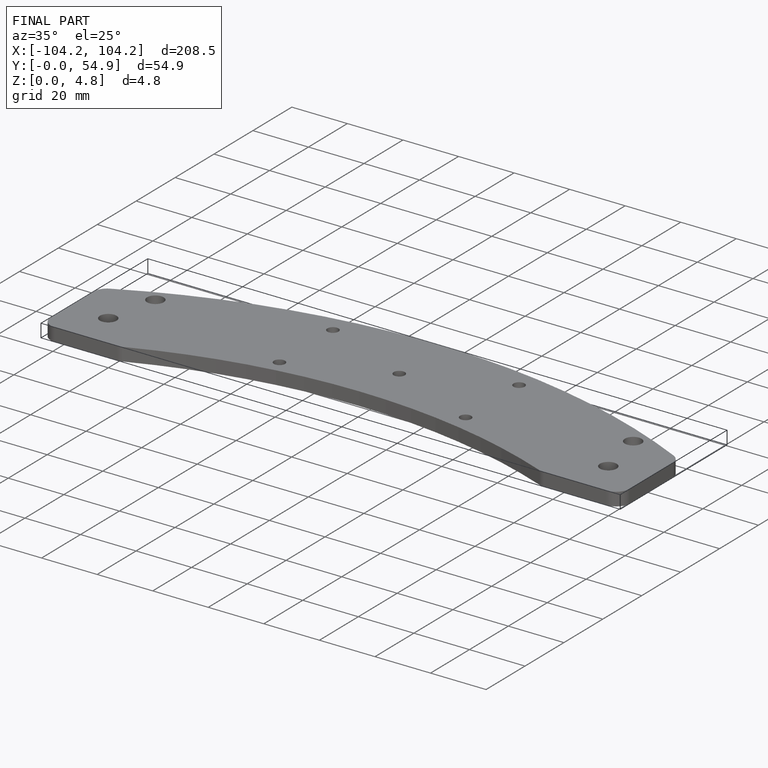
[diagram: finished part — iso view with bounding-box wireframe]
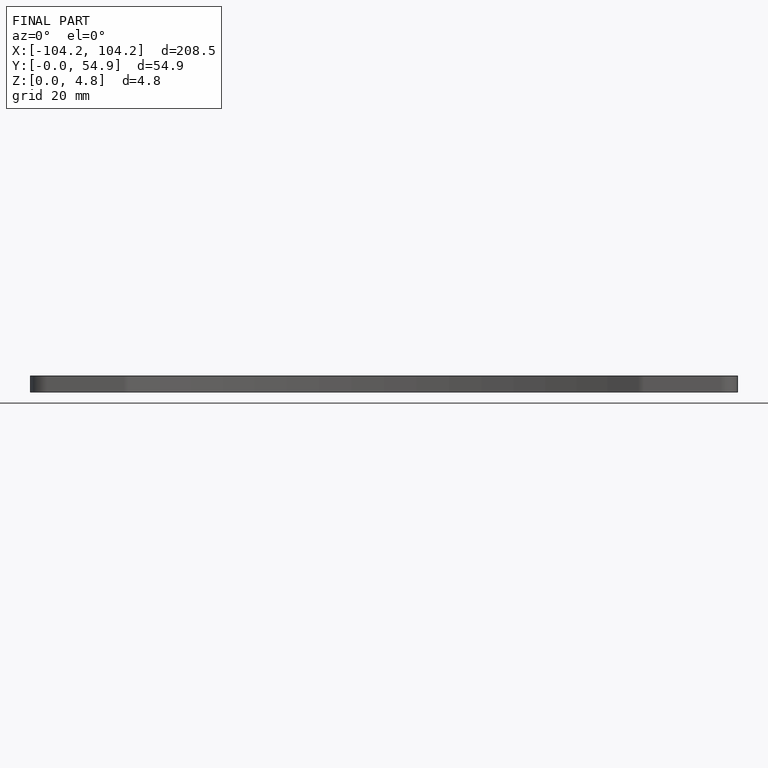
[diagram: finished part — front view with bounding-box wireframe]
